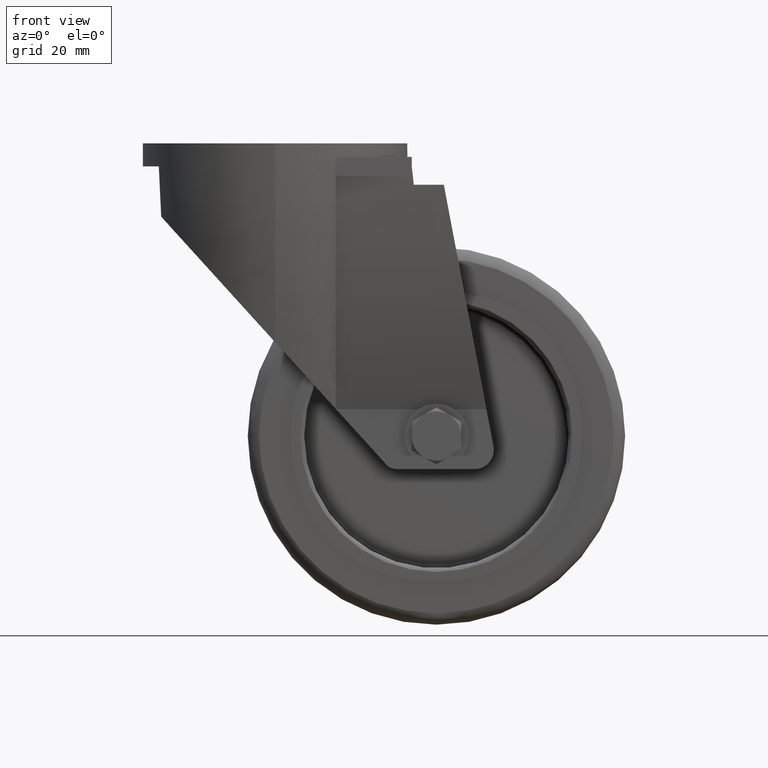
[diagram: clean part render]
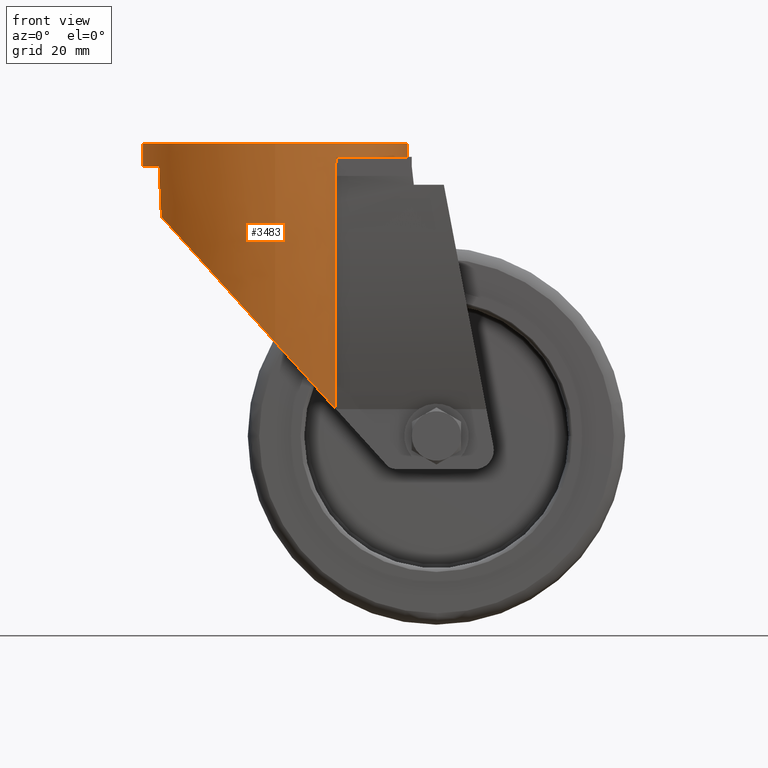
[diagram: same view with one face highlighted and labeled with its STEP entity id]
A machine part, front view. The second image highlights one B-rep face of the part: STEP entity #3483.
In plain terms, the highlighted face is a freeform B-spline surface patch.
Its self-contained STEP definition (entity closure, byte-faithful):
#3251=CARTESIAN_POINT('',(-3.694822E-013,34.999991272835643,-3.000000000000008));
#3252=VERTEX_POINT('',#3251);
#3253=CARTESIAN_POINT('',(-3.126388E-013,-34.999991272835587,-3.000000000000006));
#3254=VERTEX_POINT('',#3253);
#3255=CARTESIAN_POINT('',(-3.410605E-013,0.0,-3.000000000000006));
#3256=DIRECTION('',(-4.972366E-032,-6.123234E-017,-1.0));
#3257=DIRECTION('',(8.120490E-016,-1.0,6.123234E-017));
#3258=AXIS2_PLACEMENT_3D('',#3255,#3256,#3257);
#3259=CIRCLE('',#3258,34.999991272835643);
#3260=EDGE_CURVE('',#3252,#3254,#3259,.T.);
#3262=CARTESIAN_POINT('',(-3.410605E-013,0.0,-3.000000000000006));
#3263=DIRECTION('',(-4.972366E-032,-6.123234E-017,-1.0));
#3264=DIRECTION('',(8.120490E-016,-1.0,6.123234E-017));
#3265=AXIS2_PLACEMENT_3D('',#3262,#3263,#3264);
#3266=CIRCLE('',#3265,34.999991272835643);
#3267=EDGE_CURVE('',#3254,#3252,#3266,.T.);
#3292=CARTESIAN_POINT('',(-3.126388E-013,-34.999991272835587,-2.999999999999992));
#3293=CARTESIAN_POINT('',(-34.999991272835899,-34.999991272835615,-2.999999999999992));
#3294=CARTESIAN_POINT('',(-34.999991272835928,-2.842171E-014,-2.999999999999996));
#3295=CARTESIAN_POINT('',(-34.999991272835956,34.999991272835558,-3.000000000000001));
#3296=CARTESIAN_POINT('',(-3.694822E-013,34.999991272835587,-3.000000000000001));
#3297=CARTESIAN_POINT('',(34.999991272835217,34.999991272835615,-3.000000000000001));
#3298=CARTESIAN_POINT('',(34.999991272835246,2.842171E-014,-2.999999999999996));
#3299=CARTESIAN_POINT('',(34.999991272835274,-34.999991272835558,-2.999999999999992));
#3300=CARTESIAN_POINT('',(-3.126388E-013,-34.999991272835587,-2.999999999999992));
#3301=CARTESIAN_POINT('',(-3.124244E-013,-35.448228165532868,-38.725114249670085));
#3302=CARTESIAN_POINT('',(-35.448228165533173,-35.448228165532896,-38.725114249670085));
#3303=CARTESIAN_POINT('',(-35.448228165533202,-3.301117E-014,-38.725114249670092));
#3304=CARTESIAN_POINT('',(-35.448228165533230,35.448228165532825,-38.725114249670099));
#3305=CARTESIAN_POINT('',(-3.696966E-013,35.448228165532853,-38.725114249670099));
#3306=CARTESIAN_POINT('',(35.448228165532491,35.448228165532882,-38.725114249670099));
#3307=CARTESIAN_POINT('',(35.448228165532520,2.426104E-014,-38.725114249670092));
#3308=CARTESIAN_POINT('',(35.448228165532548,-35.448228165532839,-38.725114249670085));
#3309=CARTESIAN_POINT('',(-3.124244E-013,-35.448228165532868,-38.725114249670085));
#3310=CARTESIAN_POINT('',(-3.172436E-013,-25.373733722969632,-73.003230682617769));
#3311=CARTESIAN_POINT('',(-25.373733722969941,-25.373733722969654,-73.003230682617769));
#3312=CARTESIAN_POINT('',(-25.373733722969966,-3.238987E-014,-73.003230682617769));
#3313=CARTESIAN_POINT('',(-25.373733722969991,25.373733722969593,-73.003230682617769));
#3314=CARTESIAN_POINT('',(-3.648775E-013,25.373733722969618,-73.003230682617769));
#3315=CARTESIAN_POINT('',(25.373733722969259,25.373733722969643,-73.003230682617769));
#3316=CARTESIAN_POINT('',(25.373733722969284,1.524402E-014,-73.003230682617769));
#3317=CARTESIAN_POINT('',(25.373733722969309,-25.373733722969611,-73.003230682617769));
#3318=CARTESIAN_POINT('',(-3.172436E-013,-25.373733722969632,-73.003230682617769));
#3326=(BOUNDED_SURFACE()B_SPLINE_SURFACE(2,2,((#3292,#3301,#3310),(#3293,#3302,#3311),(#3294,#3303,#3312),(#3295,#3304,#3313),(#3296,#3305,#3314),(#3297,#3306,#3315),(#3298,#3307,#3316),(#3299,#3308,#3317),(#3300,#3309,#3318)),.UNSPECIFIED.,.T.,.F.,.U.)B_SPLINE_SURFACE_WITH_KNOTS((3,2,2,2,3),(3,3),(0.0,0.250000000000000,0.500000000000000,0.750000000000000,1.0),(0.0,1.0),.UNSPECIFIED.)GEOMETRIC_REPRESENTATION_ITEM()RATIONAL_B_SPLINE_SURFACE(((1.0,0.988890202640153,1.0),(0.707106781186548,0.699250968135791,0.707106781186548),(1.0,0.988890202640153,1.0),(0.707106781186548,0.699250968135791,0.707106781186548),(1.0,0.988890202640153,1.0),(0.707106781186548,0.699250968135791,0.707106781186548),(1.0,0.988890202640153,1.0),(0.707106781186548,0.699250968135791,0.707106781186548),(1.0,0.988890202640153,1.0)))REPRESENTATION_ITEM('')SURFACE());
#3327=ORIENTED_EDGE('',*,*,#3267,.T.);
#3328=ORIENTED_EDGE('',*,*,#3260,.T.);
#3329=CARTESIAN_POINT('',(-3.126388E-013,-29.830632426224952,-55.371295994122654));
#3330=VERTEX_POINT('',#3329);
#3331=CARTESIAN_POINT('',(-4.263256E-013,202.663913116929280,-5.981928322621235));
#3332=DIRECTION('',(1.0,4.783513E-016,-4.722797E-022));
#3333=DIRECTION('',(4.783137E-016,-0.999921297835431,0.012545841347106));
#3334=AXIS2_PLACEMENT_3D('',#3331,#3332,#3333);
#3335=CIRCLE('',#3334,237.682610525693580);
#3336=EDGE_CURVE('',#3254,#3330,#3335,.T.);
#3337=ORIENTED_EDGE('',*,*,#3336,.T.);
#3338=CARTESIAN_POINT('',(15.998477758083482,-19.694907978291781,-73.002270044212651));
#3339=VERTEX_POINT('',#3338);
#3340=CARTESIAN_POINT('',(-2.842171E-013,-29.830632426224952,-55.371295994122541));
#3341=CARTESIAN_POINT('',(0.667928372267909,-29.674264299425943,-56.107380262691727));
#3342=CARTESIAN_POINT('',(2.512702737670679,-29.170065499494115,-58.140396737862837));
#3343=CARTESIAN_POINT('',(5.972249709998550,-27.833116941150820,-61.952958453050094));
#3344=CARTESIAN_POINT('',(9.543767802131754,-25.759484175648595,-65.888916580832984));
#3345=CARTESIAN_POINT('',(12.671062652823821,-23.258503914868925,-69.335323491155009));
#3346=CARTESIAN_POINT('',(14.582730531921309,-21.365926033237358,-71.442057744986442));
#3347=CARTESIAN_POINT('',(15.657471297995581,-20.114222904187208,-72.626468242591145));
#3348=CARTESIAN_POINT('',(15.998481997615619,-19.694916795246641,-73.002276034714328));
#3349=B_SPLINE_CURVE_WITH_KNOTS('',3,(#3340,#3341,#3342,#3343,#3344,#3345,#3346,#3347,#3348),.UNSPECIFIED.,.F.,.U.,(4,1,1,1,1,1,4),(0.0,3.018874180140403,8.370022439182032,15.940226582114182,20.087509144883072,24.203299280373241,26.178165322942448),.UNSPECIFIED.);
#3350=EDGE_CURVE('',#3330,#3339,#3349,.T.);
#3351=ORIENTED_EDGE('',*,*,#3350,.T.);
#3352=CARTESIAN_POINT('',(15.998477758083510,-31.127938871916683,-9.075096515550406));
#3353=VERTEX_POINT('',#3352);
#3354=CARTESIAN_POINT('',(15.998451432495074,-19.694916653689177,-73.002303609076989));
#3355=CARTESIAN_POINT('',(15.998451432495074,-20.597546204400828,-70.618475198007786));
#3356=CARTESIAN_POINT('',(15.998491920487908,-22.394029293228982,-65.440520095627903));
#3357=CARTESIAN_POINT('',(15.998474139656764,-24.666945599118492,-57.610788757117867));
#3358=CARTESIAN_POINT('',(15.998478699089929,-26.612438536197033,-49.501394333266838));
#3359=CARTESIAN_POINT('',(15.998477293734709,-28.545640815794627,-39.598414601440091));
#3360=CARTESIAN_POINT('',(15.998477877768323,-30.064825249792477,-28.568642359967619));
#3361=CARTESIAN_POINT('',(15.998477738226200,-30.892679774494070,-17.731839922797242));
#3362=CARTESIAN_POINT('',(15.998477758083482,-31.091744523804152,-11.548516832028618));
#3363=CARTESIAN_POINT('',(15.998477758083482,-31.127938871916683,-9.075096515550406));
#3364=B_SPLINE_CURVE_WITH_KNOTS('',3,(#3354,#3355,#3356,#3357,#3358,#3359,#3360,#3361,#3362,#3363),.UNSPECIFIED.,.F.,.U.,(4,1,1,1,1,1,1,4),(0.0,7.647837345459369,16.435400913055616,24.451326626313783,32.660345208751401,46.698391379926420,57.833003080009419,65.254437426247080),.UNSPECIFIED.);
#3365=EDGE_CURVE('',#3339,#3353,#3364,.T.);
#3366=ORIENTED_EDGE('',*,*,#3365,.T.);
#3367=CARTESIAN_POINT('',(16.040846332414759,-31.127938871916626,-6.575096515550121));
#3368=VERTEX_POINT('',#3367);
#3369=CARTESIAN_POINT('',(16.040846332414759,-31.127938871916626,-6.575096515550121));
#3370=CARTESIAN_POINT('',(16.039372789405519,-31.127938871916626,-6.845565510957051));
#3371=CARTESIAN_POINT('',(16.031725893920054,-31.127938871916683,-7.679007092286219));
#3372=CARTESIAN_POINT('',(16.014500648517469,-31.127938871916626,-8.512332493921640));
#3373=CARTESIAN_POINT('',(15.998477758083510,-31.127938871916626,-9.075096515550406));
#3374=B_SPLINE_CURVE_WITH_KNOTS('',3,(#3369,#3370,#3371,#3372,#3373),.UNSPECIFIED.,.F.,.U.,(4,1,4),(0.0,0.811420776332713,2.500412914366193),.UNSPECIFIED.);
#3375=EDGE_CURVE('',#3368,#3353,#3374,.T.);
#3376=ORIENTED_EDGE('',*,*,#3375,.F.);
#3377=CARTESIAN_POINT('',(16.040846332414674,31.127938871916740,-6.575096515550121));
#3378=VERTEX_POINT('',#3377);
#3379=CARTESIAN_POINT('',(-3.410605E-013,0.0,-6.575096515550121));
#3380=DIRECTION('',(-4.969815E-032,-6.123234E-017,-1.0));
#3381=DIRECTION('',(8.116324E-016,-1.0,6.123234E-017));
#3382=AXIS2_PLACEMENT_3D('',#3379,#3380,#3381);
#3383=CIRCLE('',#3382,35.017957243019424);
#3384=EDGE_CURVE('',#3378,#3368,#3383,.T.);
#3385=ORIENTED_EDGE('',*,*,#3384,.F.);
#3386=CARTESIAN_POINT('',(15.998477758083453,31.127938871916740,-9.075096515550406));
#3387=VERTEX_POINT('',#3386);
#3388=CARTESIAN_POINT('',(15.998477758083482,31.127938871916740,-9.075096515550406));
#3389=CARTESIAN_POINT('',(16.014500648517441,31.127938871916740,-8.512332493921640));
#3390=CARTESIAN_POINT('',(16.031725893920026,31.127938871916740,-7.679007092286162));
#3391=CARTESIAN_POINT('',(16.039372789405434,31.127938871916740,-6.845565510957051));
#3392=CARTESIAN_POINT('',(16.040846332414674,31.127938871916740,-6.575096515550121));
#3393=B_SPLINE_CURVE_WITH_KNOTS('',3,(#3388,#3389,#3390,#3391,#3392),.UNSPECIFIED.,.F.,.U.,(4,1,4),(0.0,1.688992138033479,2.500412914366192),.UNSPECIFIED.);
#3394=EDGE_CURVE('',#3387,#3378,#3393,.T.);
#3395=ORIENTED_EDGE('',*,*,#3394,.F.);
#3396=CARTESIAN_POINT('',(15.998477758083453,19.694907978291894,-73.002270044212651));
#3397=VERTEX_POINT('',#3396);
#3398=CARTESIAN_POINT('',(15.998477758083453,31.127938871916740,-9.075096515550406));
#3399=CARTESIAN_POINT('',(15.998477758083453,31.091744523804209,-11.548516832028618));
#3400=CARTESIAN_POINT('',(15.998477729813573,30.892679780191088,-17.731839924887090));
#3401=CARTESIAN_POINT('',(15.998477928473363,30.064825215455812,-28.568642347371458));
#3402=CARTESIAN_POINT('',(15.998477097011062,28.545640949012977,-39.598414650310254));
#3403=CARTESIAN_POINT('',(15.998479097751954,26.612438266229333,-49.501394234230823));
#3404=CARTESIAN_POINT('',(15.998472606692133,24.666946637218189,-57.610789137938816));
#3405=CARTESIAN_POINT('',(15.998497920474392,22.394024113673140,-65.440522451098786));
#3406=CARTESIAN_POINT('',(15.998440279442491,20.597551131382147,-70.618485536492472));
#3407=CARTESIAN_POINT('',(15.998440279442491,19.694920329250522,-73.002317828626815));
#3408=B_SPLINE_CURVE_WITH_KNOTS('',3,(#3398,#3399,#3400,#3401,#3402,#3403,#3404,#3405,#3406,#3407),.UNSPECIFIED.,.F.,.U.,(4,1,1,1,1,1,1,4),(0.0,7.421434346237659,18.556046046320660,32.594092217495664,40.803110799933279,48.819036513191449,57.606600080787693,65.254449436831038),.UNSPECIFIED.);
#3409=EDGE_CURVE('',#3387,#3397,#3408,.T.);
#3410=ORIENTED_EDGE('',*,*,#3409,.T.);
#3411=CARTESIAN_POINT('',(-30.012313893956204,16.929942680698105,-22.296503788962703));
#3412=VERTEX_POINT('',#3411);
#3413=CARTESIAN_POINT('',(15.998478078095786,19.694909861704332,-73.002271855217259));
#3414=CARTESIAN_POINT('',(15.539211750924494,20.259616010797231,-72.496141848354455));
#3415=CARTESIAN_POINT('',(13.867384805463956,22.170123480721145,-70.653716795634409));
#3416=CARTESIAN_POINT('',(11.169916509870575,24.568105711281419,-67.680999378728870));
#3417=CARTESIAN_POINT('',(7.951308810632185,26.703451038935214,-64.133962031122110));
#3418=CARTESIAN_POINT('',(4.516655174174389,28.468313006576068,-60.348833989863586));
#3419=CARTESIAN_POINT('',(0.698123295359665,29.780889678001017,-56.140656284249424));
#3420=CARTESIAN_POINT('',(-3.448315063221230,30.500653053635801,-51.571112364263463));
#3421=CARTESIAN_POINT('',(-6.242974859637855,30.590339365098544,-48.491283434037776));
#3422=CARTESIAN_POINT('',(-8.873149258348576,30.458220735779264,-45.592724155688650));
#3423=CARTESIAN_POINT('',(-11.658121962070481,30.102024170716504,-42.523570852046937));
#3424=CARTESIAN_POINT('',(-15.656786491461730,28.996569340722885,-38.116879346049821));
#3425=CARTESIAN_POINT('',(-19.738176021670299,27.099610097429036,-33.619023274707395));
#3426=CARTESIAN_POINT('',(-23.539834090110844,24.491378620691194,-29.429436489044015));
#3427=CARTESIAN_POINT('',(-26.508637599115275,21.674383985801569,-26.157708994801631));
#3428=CARTESIAN_POINT('',(-28.615243133860460,19.064425903760025,-23.836110218506242));
#3429=CARTESIAN_POINT('',(-29.621401918912014,17.562599002697539,-22.727337660470660));
#3430=CARTESIAN_POINT('',(-30.012341793449991,16.929892912851187,-22.296505997149332));
#3431=B_SPLINE_CURVE_WITH_KNOTS('',3,(#3413,#3414,#3415,#3416,#3417,#3418,#3419,#3420,#3421,#3422,#3423,#3424,#3425,#3426,#3427,#3428,#3429,#3430),.UNSPECIFIED.,.F.,.U.,(4,1,1,1,1,1,1,1,1,1,1,1,1,1,1,4),(4.069722251898208,6.729383540714742,13.474244281801646,18.055482866811747,22.446000422351002,29.681962117680090,35.516586428806640,41.060754981574178,42.148003698865786,47.264658786579872,53.528154546364497,60.277324959928549,66.313518780929826,72.178314888486426,75.955123700627979,78.534316629584112),.UNSPECIFIED.);
#3432=EDGE_CURVE('',#3397,#3412,#3431,.T.);
#3433=ORIENTED_EDGE('',*,*,#3432,.T.);
#3434=CARTESIAN_POINT('',(-30.631306041662384,16.929942680698105,-9.075096515550406));
#3435=VERTEX_POINT('',#3434);
#3436=CARTESIAN_POINT('',(-30.012318149229742,16.929942680698105,-22.296504125120507));
#3437=CARTESIAN_POINT('',(-30.210857464457849,16.929942680698105,-19.783282503870382));
#3438=CARTESIAN_POINT('',(-30.477370297925287,16.929942680698105,-15.377900480208272));
#3439=CARTESIAN_POINT('',(-30.603180105816080,16.929942680698105,-10.966478708767120));
#3440=CARTESIAN_POINT('',(-30.631306041662384,16.929942680698105,-9.075096515550406));
#3441=B_SPLINE_CURVE_WITH_KNOTS('',3,(#3436,#3437,#3438,#3439,#3440),.UNSPECIFIED.,.F.,.U.,(4,1,4),(69.815102129039218,77.378287216474646,83.053234899110947),.UNSPECIFIED.);
#3442=EDGE_CURVE('',#3412,#3435,#3441,.T.);
#3443=ORIENTED_EDGE('',*,*,#3442,.T.);
#3444=CARTESIAN_POINT('',(-30.553445175715524,-17.070057319301895,-9.075096515550406));
#3445=VERTEX_POINT('',#3444);
#3446=CARTESIAN_POINT('',(-3.410605E-013,0.0,-9.075096515550406));
#3447=DIRECTION('',(4.972568E-032,6.123234E-017,1.0));
#3448=DIRECTION('',(8.120820E-016,-1.0,6.123234E-017));
#3449=AXIS2_PLACEMENT_3D('',#3446,#3447,#3448);
#3450=CIRCLE('',#3449,34.998569527763351);
#3451=EDGE_CURVE('',#3435,#3445,#3450,.T.);
#3452=ORIENTED_EDGE('',*,*,#3451,.T.);
#3453=CARTESIAN_POINT('',(-29.925217987827281,-17.070057319301895,-22.392487024620955));
#3454=VERTEX_POINT('',#3453);
#3455=CARTESIAN_POINT('',(-30.553445175715524,-17.070057319301895,-9.075096515550406));
#3456=CARTESIAN_POINT('',(-30.525248395474208,-17.070057319301895,-10.966423013706397));
#3457=CARTESIAN_POINT('',(-30.398201303003844,-17.070057319301895,-15.409953223383727));
#3458=CARTESIAN_POINT('',(-30.128022949856899,-17.070057319301895,-19.847324066887623));
#3459=CARTESIAN_POINT('',(-29.925222013493801,-17.070057319301895,-22.392487345389711));
#3460=B_SPLINE_CURVE_WITH_KNOTS('',3,(#3455,#3456,#3457,#3458,#3459),.UNSPECIFIED.,.F.,.U.,(4,1,4),(0.0,5.674784663705655,13.334506134109247),.UNSPECIFIED.);
#3461=EDGE_CURVE('',#3445,#3454,#3460,.T.);
#3462=ORIENTED_EDGE('',*,*,#3461,.T.);
#3463=CARTESIAN_POINT('',(-29.925244710015392,-17.070010174956224,-22.392489157873918));
#3464=CARTESIAN_POINT('',(-29.408977666223919,-17.895604017642654,-22.961436465839206));
#3465=CARTESIAN_POINT('',(-28.042745385029789,-19.861610594554008,-24.467025675522798));
#3466=CARTESIAN_POINT('',(-26.087325662258792,-22.067539944295277,-26.622003785112618));
#3467=CARTESIAN_POINT('',(-23.810272068998415,-24.168828758853806,-29.131405356600858));
#3468=CARTESIAN_POINT('',(-21.157591446952466,-26.197055671831322,-32.054769098896493));
#3469=CARTESIAN_POINT('',(-17.592261057888351,-28.189894500381229,-35.983907676058841));
#3470=CARTESIAN_POINT('',(-13.441468351296479,-29.699021199965614,-40.558250493472322));
#3471=CARTESIAN_POINT('',(-10.231335320258950,-30.313872181312490,-44.095947787139558));
#3472=CARTESIAN_POINT('',(-7.340726478931231,-30.563924567772006,-47.281516447375459));
#3473=CARTESIAN_POINT('',(-4.864692663473932,-30.579007780789027,-50.010206559427736));
#3474=CARTESIAN_POINT('',(-2.204215245354646,-30.291226487416566,-52.942161023641695));
#3475=CARTESIAN_POINT('',(-0.589173966281521,-29.968563427947913,-54.722002288335780));
#3476=CARTESIAN_POINT('',(-2.842171E-013,-29.830632426224952,-55.371295994122541));
#3477=B_SPLINE_CURVE_WITH_KNOTS('',3,(#3463,#3464,#3465,#3466,#3467,#3468,#3469,#3470,#3471,#3472,#3473,#3474,#3475,#3476),.UNSPECIFIED.,.F.,.U.,(4,1,1,1,1,1,1,1,1,1,1,4),(0.0,3.384686483772321,8.470962048703100,10.930897247991156,15.341025147912760,21.768512934842406,27.898016032199333,34.386944539795678,36.195406228810349,40.822976601638700,45.432673832342914,48.095523972636762),.UNSPECIFIED.);
#3478=EDGE_CURVE('',#3454,#3330,#3477,.T.);
#3479=ORIENTED_EDGE('',*,*,#3478,.T.);
#3480=ORIENTED_EDGE('',*,*,#3336,.F.);
#3481=EDGE_LOOP('',(#3327,#3328,#3337,#3351,#3366,#3376,#3385,#3395,#3410,#3433,#3443,#3452,#3462,#3479,#3480));
#3482=FACE_OUTER_BOUND('',#3481,.T.);
#3483=ADVANCED_FACE('',(#3482),#3326,.T.);